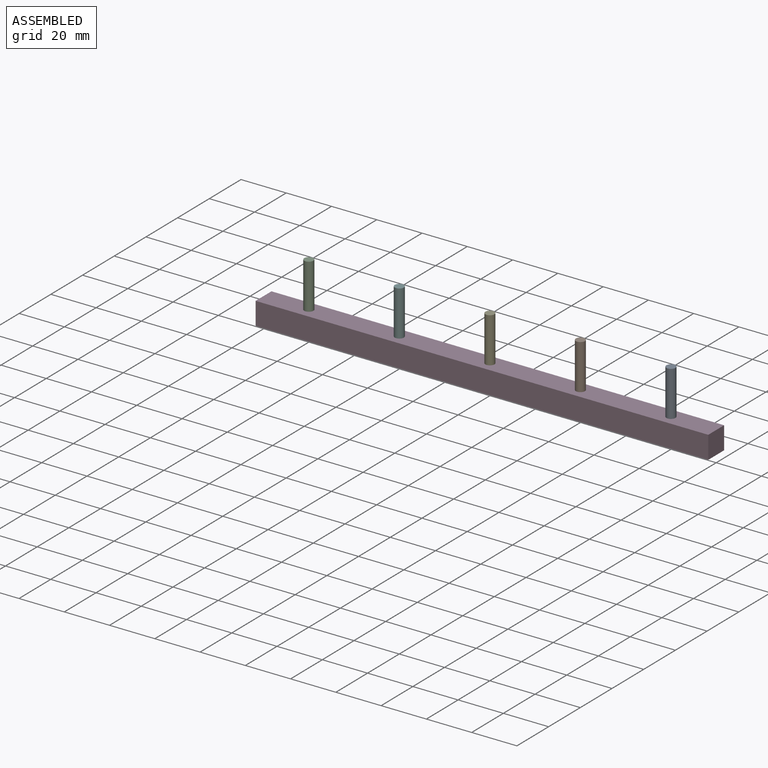
[diagram: assembled view]
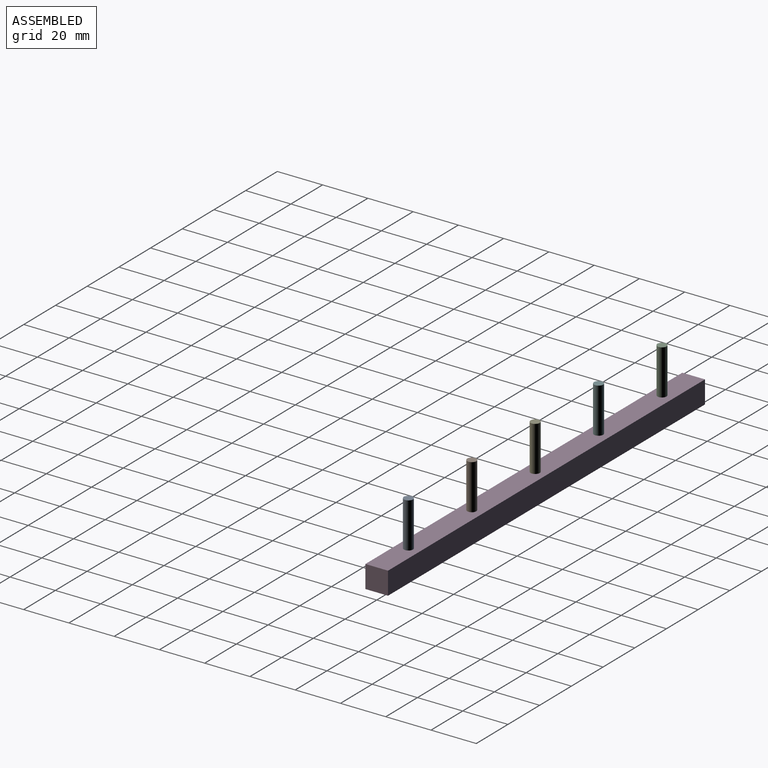
[diagram: assembled view, second angle]
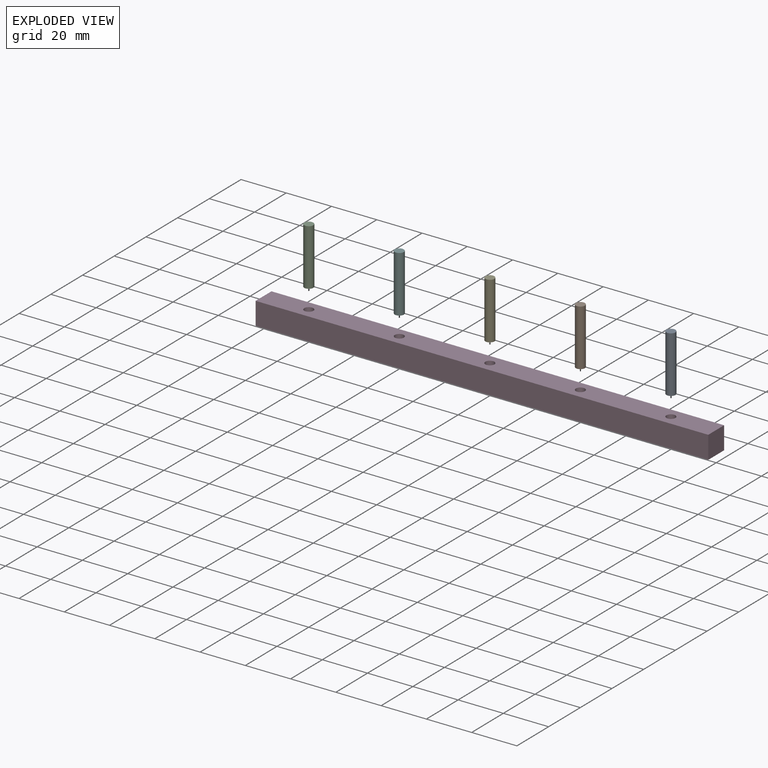
[diagram: exploded view]
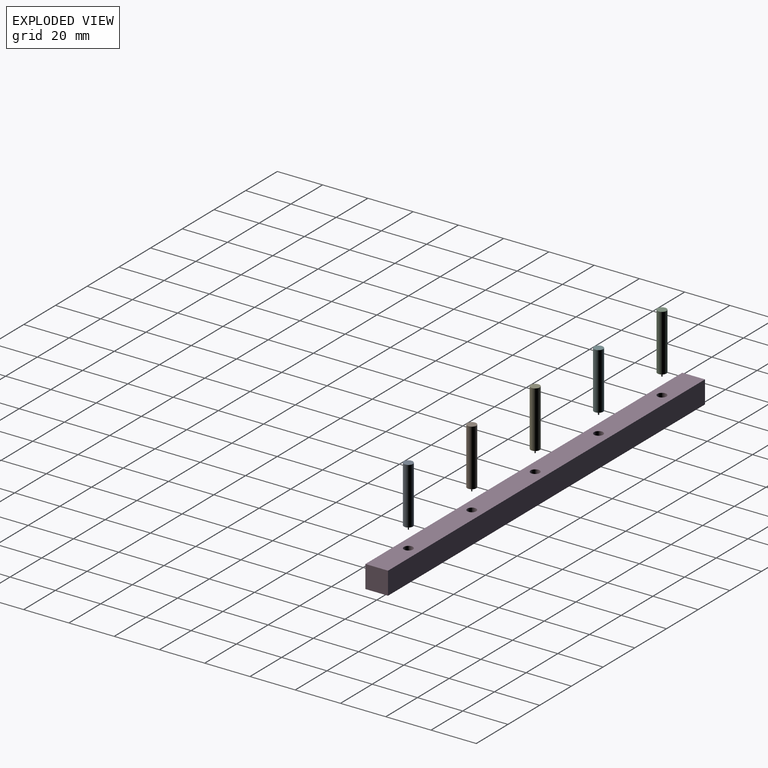
[diagram: exploded view, second angle]
ASSEMBLY  parts=6 mates=5
PART A: 3 faces, bbox 4x4x25 mm
  f0: cylinder r=2mm len=25mm, axis (0,0,1), area 314.2mm2, adj f1,f2
  f1: plane 4x4mm, normal (0,0,-1), area 12.6mm2, adj f0
  f2: plane 4x4mm, normal (0,0,1), area 12.6mm2, adj f0
PART B: 3 faces, bbox 4x4x25 mm
  f0: cylinder r=2mm len=25mm, axis (0,0,1), area 314.2mm2, adj f1,f2
  f1: plane 4x4mm, normal (0,0,-1), area 12.6mm2, adj f0
  f2: plane 4x4mm, normal (0,0,1), area 12.6mm2, adj f0
PART C: 3 faces, bbox 4x4x25 mm
  f0: cylinder r=2mm len=25mm, axis (0,0,1), area 314.2mm2, adj f1,f2
  f1: plane 4x4mm, normal (0,0,-1), area 12.6mm2, adj f0
  f2: plane 4x4mm, normal (0,0,1), area 12.6mm2, adj f0
PART D: 16 faces, bbox 200x10x10 mm
  f0: plane 200x10mm, normal (0,0,1), area 1937.2mm2, adj f1,f2,f3,f4,f6,f8,f10,f12
  f1: plane 200x10mm, normal (0,-1,0), area 2000mm2, adj f0,f2,f4,f5
  f2: plane 10x10mm, normal (-1,0,0), area 100mm2, adj f0,f1,f3,f5
  f3: plane 200x10mm, normal (0,1,0), area 2000mm2, adj f0,f2,f4,f5
  f4: plane 10x10mm, normal (1,0,0), area 100mm2, adj f0,f1,f3,f5
  f5: plane 200x10mm, normal (0,0,-1), area 2000mm2, adj f1,f2,f3,f4
  f6: cylinder r=2mm len=5mm, axis (0,0,1), area 62.8mm2, adj f0,f7
  f7: plane 4x4mm, normal (0,0,1), area 12.6mm2, adj f6
  f8: cylinder r=2mm len=5mm, axis (0,0,1), area 62.8mm2, adj f0,f9
  f9: plane 4x4mm, normal (0,0,1), area 12.6mm2, adj f8
  f10: cylinder r=2mm len=5mm, axis (0,0,1), area 62.8mm2, adj f0,f11
  f11: plane 4x4mm, normal (0,0,1), area 12.6mm2, adj f10
  f12: cylinder r=2mm len=5mm, axis (0,0,1), area 62.8mm2, adj f0,f13
  f13: plane 4x4mm, normal (0,0,1), area 12.6mm2, adj f12
  f14: cylinder r=2mm len=5mm, axis (0,0,1), area 62.8mm2, adj f0,f15
  f15: plane 4x4mm, normal (0,0,1), area 12.6mm2, adj f14
PART E: 3 faces, bbox 4x4x25 mm
  f0: cylinder r=2mm len=25mm, axis (0,0,1), area 314.2mm2, adj f1,f2
  f1: plane 4x4mm, normal (0,0,-1), area 12.6mm2, adj f0
  f2: plane 4x4mm, normal (0,0,1), area 12.6mm2, adj f0
PART F: 3 faces, bbox 4x4x25 mm
  f0: cylinder r=2mm len=25mm, axis (0,0,1), area 314.2mm2, adj f1,f2
  f1: plane 4x4mm, normal (0,0,-1), area 12.6mm2, adj f0
  f2: plane 4x4mm, normal (0,0,1), area 12.6mm2, adj f0
PLACE A at identity
PLACE B at identity
PLACE C at identity
PLACE D at identity fixed
PLACE E at identity
PLACE F at identity
MATE fastened D.f6 <-> A.f0  axis (0,0,1) through (80,0,-25)mm
MATE fastened D.f14 <-> C.f0  axis (0,0,1) through (-80,0,-25)mm
MATE fastened D.f10 <-> E.f0  axis (0,0,1) through (0,0,-25)mm
MATE fastened D.f8 <-> B.f0  axis (0,0,1) through (40,0,-25)mm
MATE fastened D.f12 <-> F.f0  axis (0,0,1) through (-40,0,-25)mm
